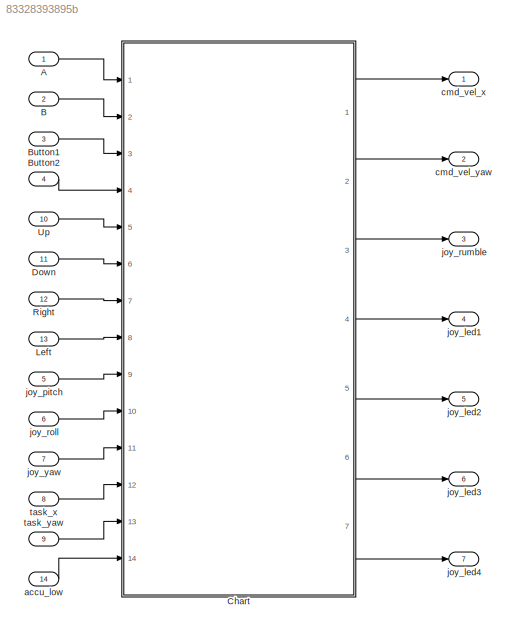
MODEL slx_83328393895b
KIND model
BLOCK [Inport] A
  IconDisplay = Port number
BLOCK [Inport] B
  IconDisplay = Port number
  Port = 2
BLOCK [Inport] Button1
  IconDisplay = Port number
  Port = 3
BLOCK [Inport] Button2
  IconDisplay = Port number
  Port = 4
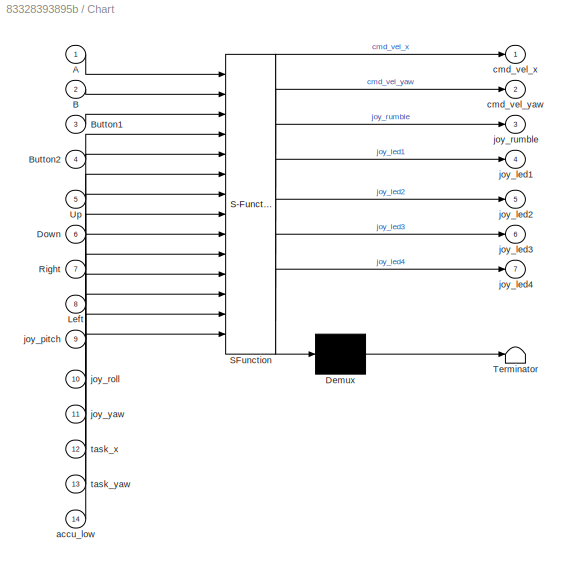
BLOCK [SubSystem] Chart
  ErrorFcn = Stateflow.Translate.translate
  FunctionWithSeparateData = off
  MaskHideContents = off
  MinAlgLoopOccurrences = off
  Opaque = off
  PermitHierarchicalResolution = ExplicitOnly
  Ports = [14, 7]
  PropExecContextOutsideSubsystem = off
  RTWSystemCode = Auto
  RequestExecContextInheritance = off
  SFBlockType = Chart
  TreatAsAtomicUnit = on
BLOCK [Demux] Chart/ Demux 
  Outputs = 1
  Ports = [1, 1]
BLOCK [S-Function] Chart/ SFunction 
  EnableBusSupport = on
  FunctionName = sf_sfun
  PortCounts = [14 8]
  Ports = [14, 8]
  Tag = Stateflow S-Function floribot_wiimote 1
BLOCK [Terminator] Chart/ Terminator 
BLOCK [Inport] Chart/A
  IconDisplay = Port number
BLOCK [Inport] Chart/B
  IconDisplay = Port number
  Port = 2
BLOCK [Inport] Chart/Button1
  IconDisplay = Port number
  Port = 3
BLOCK [Inport] Chart/Button2
  IconDisplay = Port number
  Port = 4
BLOCK [Inport] Chart/Down
  IconDisplay = Port number
  Port = 6
BLOCK [Inport] Chart/Left
  IconDisplay = Port number
  Port = 8
BLOCK [Inport] Chart/Right
  IconDisplay = Port number
  Port = 7
BLOCK [Inport] Chart/Up
  IconDisplay = Port number
  Port = 5
BLOCK [Inport] Chart/accu_low
  IconDisplay = Port number
  Port = 14
BLOCK [Outport] Chart/cmd_vel_x
  IconDisplay = Port number
BLOCK [Outport] Chart/cmd_vel_yaw
  IconDisplay = Port number
  Port = 2
BLOCK [Outport] Chart/joy_led1
  IconDisplay = Port number
  Port = 4
BLOCK [Outport] Chart/joy_led2
  IconDisplay = Port number
  Port = 5
BLOCK [Outport] Chart/joy_led3
  IconDisplay = Port number
  Port = 6
BLOCK [Outport] Chart/joy_led4
  IconDisplay = Port number
  Port = 7
BLOCK [Inport] Chart/joy_pitch
  IconDisplay = Port number
  Port = 9
BLOCK [Inport] Chart/joy_roll
  IconDisplay = Port number
  Port = 10
BLOCK [Outport] Chart/joy_rumble
  IconDisplay = Port number
  Port = 3
BLOCK [Inport] Chart/joy_yaw
  IconDisplay = Port number
  Port = 11
BLOCK [Inport] Chart/task_x
  IconDisplay = Port number
  Port = 12
BLOCK [Inport] Chart/task_yaw
  IconDisplay = Port number
  Port = 13
BLOCK [Inport] Down
  IconDisplay = Port number
  Port = 11
BLOCK [Inport] Left
  IconDisplay = Port number
  Port = 13
BLOCK [Inport] Right
  IconDisplay = Port number
  Port = 12
BLOCK [Inport] Up
  IconDisplay = Port number
  Port = 10
BLOCK [Inport] accu_low
  IconDisplay = Port number
  Port = 14
BLOCK [Outport] cmd_vel_x
  IconDisplay = Port number
BLOCK [Outport] cmd_vel_yaw
  IconDisplay = Port number
  Port = 2
BLOCK [Outport] joy_led1
  IconDisplay = Port number
  Port = 4
BLOCK [Outport] joy_led2
  IconDisplay = Port number
  Port = 5
BLOCK [Outport] joy_led3
  IconDisplay = Port number
  Port = 6
BLOCK [Outport] joy_led4
  IconDisplay = Port number
  Port = 7
BLOCK [Inport] joy_pitch
  IconDisplay = Port number
  Port = 5
BLOCK [Inport] joy_roll
  IconDisplay = Port number
  Port = 6
BLOCK [Outport] joy_rumble
  IconDisplay = Port number
  Port = 3
BLOCK [Inport] joy_yaw
  IconDisplay = Port number
  Port = 7
BLOCK [Inport] task_x
  IconDisplay = Port number
  Port = 8
BLOCK [Inport] task_yaw
  IconDisplay = Port number
  Port = 9
LINE A:1 -> Chart:1
LINE B:1 -> Chart:2
LINE Button1:1 -> Chart:3
LINE Button2:1 -> Chart:4
LINE Chart:1 -> cmd_vel_x:1
LINE Chart:2 -> cmd_vel_yaw:1
LINE Chart:3 -> joy_rumble:1
LINE Chart:4 -> joy_led1:1
LINE Chart:5 -> joy_led2:1
LINE Chart:6 -> joy_led3:1
LINE Chart:7 -> joy_led4:1
LINE Down:1 -> Chart:6
LINE Left:1 -> Chart:8
LINE Right:1 -> Chart:7
LINE Up:1 -> Chart:5
LINE accu_low:1 -> Chart:14
LINE joy_pitch:1 -> Chart:9
LINE joy_roll:1 -> Chart:10
LINE joy_yaw:1 -> Chart:11
LINE task_x:1 -> Chart:12
LINE task_yaw:1 -> Chart:13
